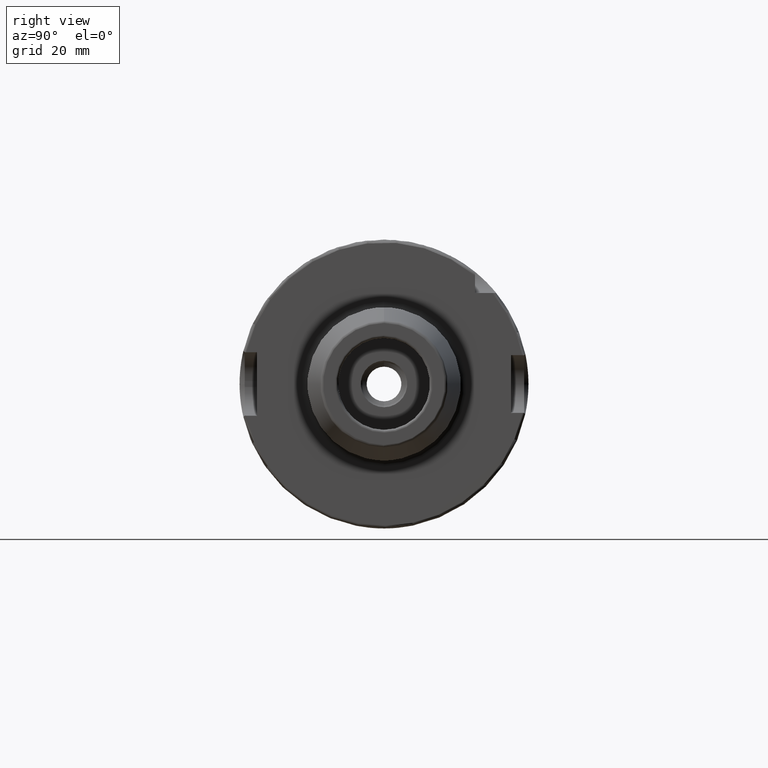
[diagram: clean part render]
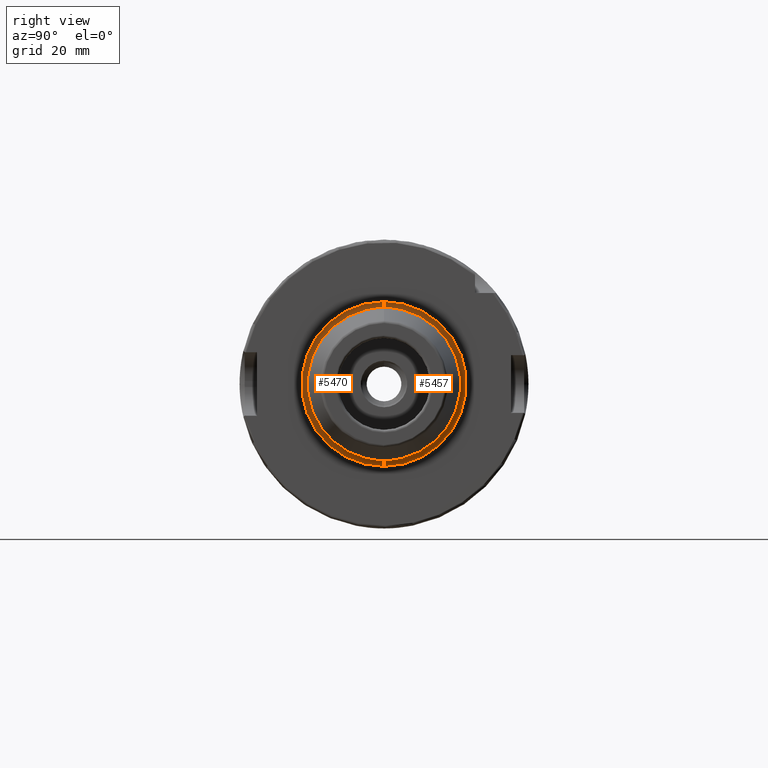
[diagram: same view with one multi-face feature highlighted, each face labeled with its STEP entity id]
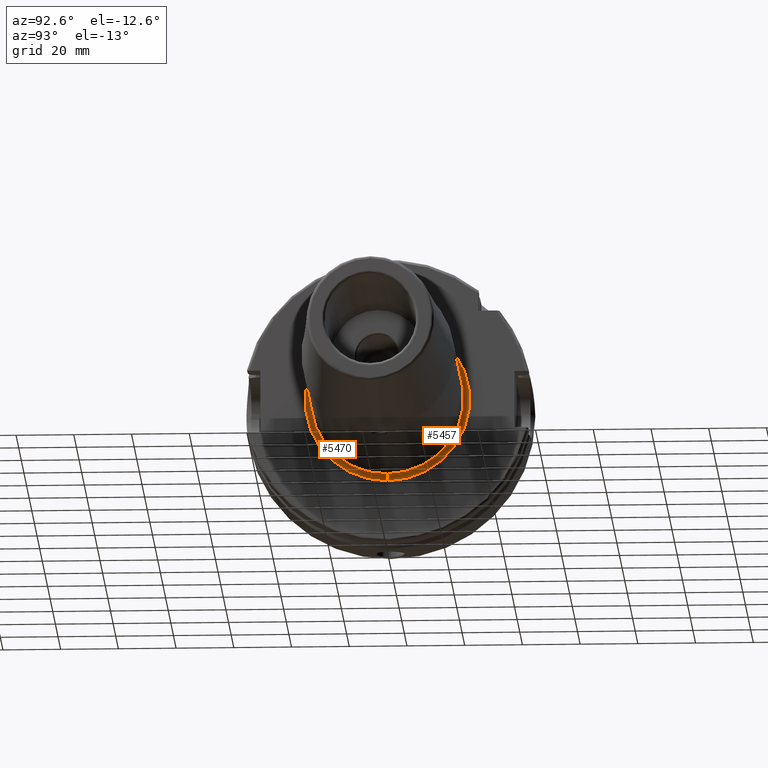
[diagram: same view with one multi-face feature highlighted, each face labeled with its STEP entity id]
A machine part, right view. The highlighted faces form ONE feature: a constant-radius fillet chain: 2 tangent blend faces with common blend radius 2 mm. The faces share edges in the B-rep.
A second angle (auxiliary view) of the same feature is appended — it is thin or edge-on in the first view.
Their STEP definitions:
[1] entity #5457 (Torus):
#1677=CARTESIAN_POINT('',(2.9E1,0.E0,0.E0));
#1678=DIRECTION('',(1.E0,0.E0,0.E0));
#1679=DIRECTION('',(0.E0,0.E0,-1.E0));
#1680=AXIS2_PLACEMENT_3D('',#1677,#1678,#1679);
#2062=CARTESIAN_POINT('',(3.1E1,0.E0,0.E0));
#2063=DIRECTION('',(1.E0,0.E0,0.E0));
#2064=DIRECTION('',(0.E0,0.E0,-1.E0));
#2065=AXIS2_PLACEMENT_3D('',#2062,#2063,#2064);
#2067=CARTESIAN_POINT('',(3.1E1,0.E0,2.85E1));
#2068=DIRECTION('',(0.E0,1.E0,0.E0));
#2069=DIRECTION('',(0.E0,0.E0,-1.E0));
#2070=AXIS2_PLACEMENT_3D('',#2067,#2068,#2069);
#2077=CARTESIAN_POINT('',(3.1E1,0.E0,-2.85E1));
#2078=DIRECTION('',(0.E0,-1.E0,0.E0));
#2079=DIRECTION('',(0.E0,0.E0,1.E0));
#2080=AXIS2_PLACEMENT_3D('',#2077,#2078,#2079);
#3207=CARTESIAN_POINT('',(3.1E1,0.E0,-2.65E1));
#3208=CARTESIAN_POINT('',(3.1E1,0.E0,2.65E1));
#3209=VERTEX_POINT('',#3207);
#3210=VERTEX_POINT('',#3208);
#3211=CARTESIAN_POINT('',(2.9E1,0.E0,-2.85E1));
#3212=CARTESIAN_POINT('',(2.9E1,0.E0,2.85E1));
#3213=VERTEX_POINT('',#3211);
#3214=VERTEX_POINT('',#3212);
#5443=CARTESIAN_POINT('',(3.1E1,0.E0,0.E0));
#5444=DIRECTION('',(1.E0,0.E0,0.E0));
#5445=DIRECTION('',(0.E0,0.E0,1.E0));
#5446=AXIS2_PLACEMENT_3D('',#5443,#5444,#5445);
#5447=TOROIDAL_SURFACE('',#5446,2.85E1,2.E0);
#5448=ORIENTED_EDGE('',*,*,#5033,.F.);
#5450=ORIENTED_EDGE('',*,*,#5449,.F.);
#5452=ORIENTED_EDGE('',*,*,#5451,.T.);
#5454=ORIENTED_EDGE('',*,*,#5453,.T.);
#5455=EDGE_LOOP('',(#5448,#5450,#5452,#5454));
#5456=FACE_OUTER_BOUND('',#5455,.F.);
#5457=ADVANCED_FACE('',(#5456),#5447,.F.);
#1681=CIRCLE('',#1680,2.85E1);
#2066=CIRCLE('',#2065,2.65E1);
#2071=CIRCLE('',#2070,2.E0);
#2081=CIRCLE('',#2080,2.E0);
#5033=EDGE_CURVE('',#3213,#3214,#1681,.T.);
#5449=EDGE_CURVE('',#3209,#3213,#2081,.T.);
#5451=EDGE_CURVE('',#3209,#3210,#2066,.T.);
#5453=EDGE_CURVE('',#3210,#3214,#2071,.T.);
[2] entity #5470 (Torus):
#1682=CARTESIAN_POINT('',(2.9E1,0.E0,0.E0));
#1683=DIRECTION('',(1.E0,0.E0,0.E0));
#1684=DIRECTION('',(0.E0,0.E0,1.E0));
#1685=AXIS2_PLACEMENT_3D('',#1682,#1683,#1684);
#2067=CARTESIAN_POINT('',(3.1E1,0.E0,2.85E1));
#2068=DIRECTION('',(0.E0,1.E0,0.E0));
#2069=DIRECTION('',(0.E0,0.E0,-1.E0));
#2070=AXIS2_PLACEMENT_3D('',#2067,#2068,#2069);
#2072=CARTESIAN_POINT('',(3.1E1,0.E0,0.E0));
#2073=DIRECTION('',(-1.E0,0.E0,0.E0));
#2074=DIRECTION('',(0.E0,0.E0,-1.E0));
#2075=AXIS2_PLACEMENT_3D('',#2072,#2073,#2074);
#2077=CARTESIAN_POINT('',(3.1E1,0.E0,-2.85E1));
#2078=DIRECTION('',(0.E0,-1.E0,0.E0));
#2079=DIRECTION('',(0.E0,0.E0,1.E0));
#2080=AXIS2_PLACEMENT_3D('',#2077,#2078,#2079);
#3207=CARTESIAN_POINT('',(3.1E1,0.E0,-2.65E1));
#3208=CARTESIAN_POINT('',(3.1E1,0.E0,2.65E1));
#3209=VERTEX_POINT('',#3207);
#3210=VERTEX_POINT('',#3208);
#3211=CARTESIAN_POINT('',(2.9E1,0.E0,-2.85E1));
#3212=CARTESIAN_POINT('',(2.9E1,0.E0,2.85E1));
#3213=VERTEX_POINT('',#3211);
#3214=VERTEX_POINT('',#3212);
#5458=CARTESIAN_POINT('',(3.1E1,0.E0,0.E0));
#5459=DIRECTION('',(1.E0,0.E0,0.E0));
#5460=DIRECTION('',(0.E0,0.E0,1.E0));
#5461=AXIS2_PLACEMENT_3D('',#5458,#5459,#5460);
#5462=TOROIDAL_SURFACE('',#5461,2.85E1,2.E0);
#5463=ORIENTED_EDGE('',*,*,#5035,.F.);
#5464=ORIENTED_EDGE('',*,*,#5453,.F.);
#5466=ORIENTED_EDGE('',*,*,#5465,.F.);
#5467=ORIENTED_EDGE('',*,*,#5449,.T.);
#5468=EDGE_LOOP('',(#5463,#5464,#5466,#5467));
#5469=FACE_OUTER_BOUND('',#5468,.F.);
#5470=ADVANCED_FACE('',(#5469),#5462,.F.);
#1686=CIRCLE('',#1685,2.85E1);
#2071=CIRCLE('',#2070,2.E0);
#2076=CIRCLE('',#2075,2.65E1);
#2081=CIRCLE('',#2080,2.E0);
#5035=EDGE_CURVE('',#3214,#3213,#1686,.T.);
#5449=EDGE_CURVE('',#3209,#3213,#2081,.T.);
#5453=EDGE_CURVE('',#3210,#3214,#2071,.T.);
#5465=EDGE_CURVE('',#3209,#3210,#2076,.T.);